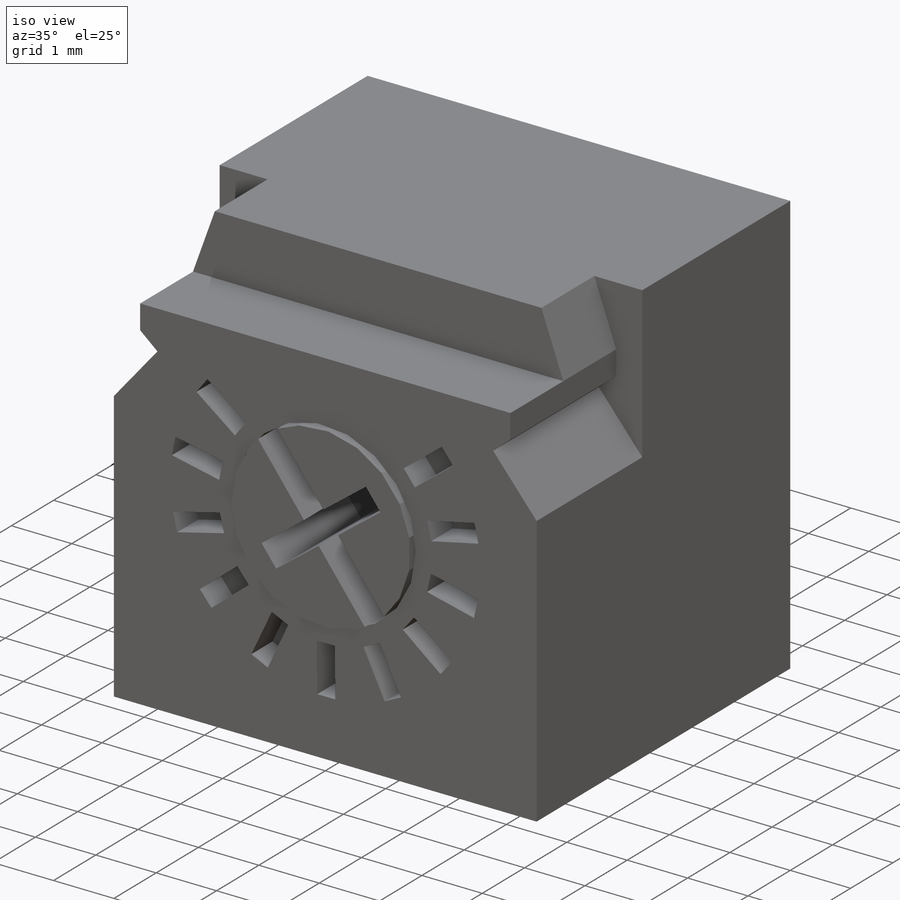
[diagram: iso view]
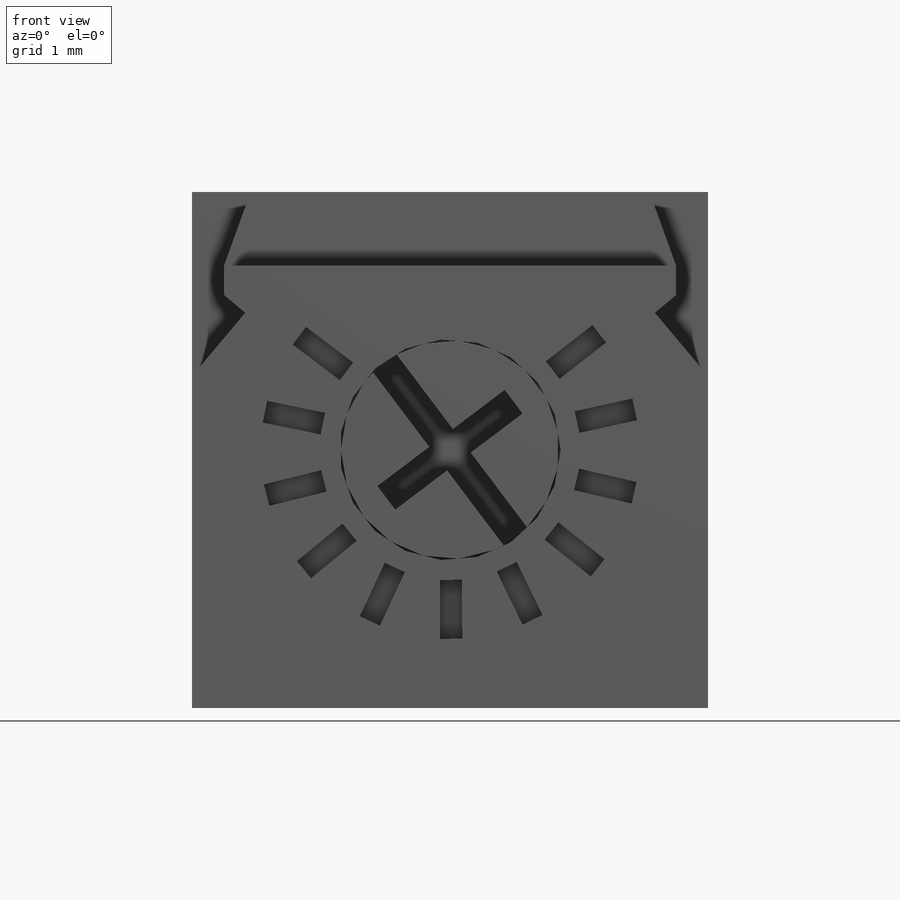
[diagram: front view]
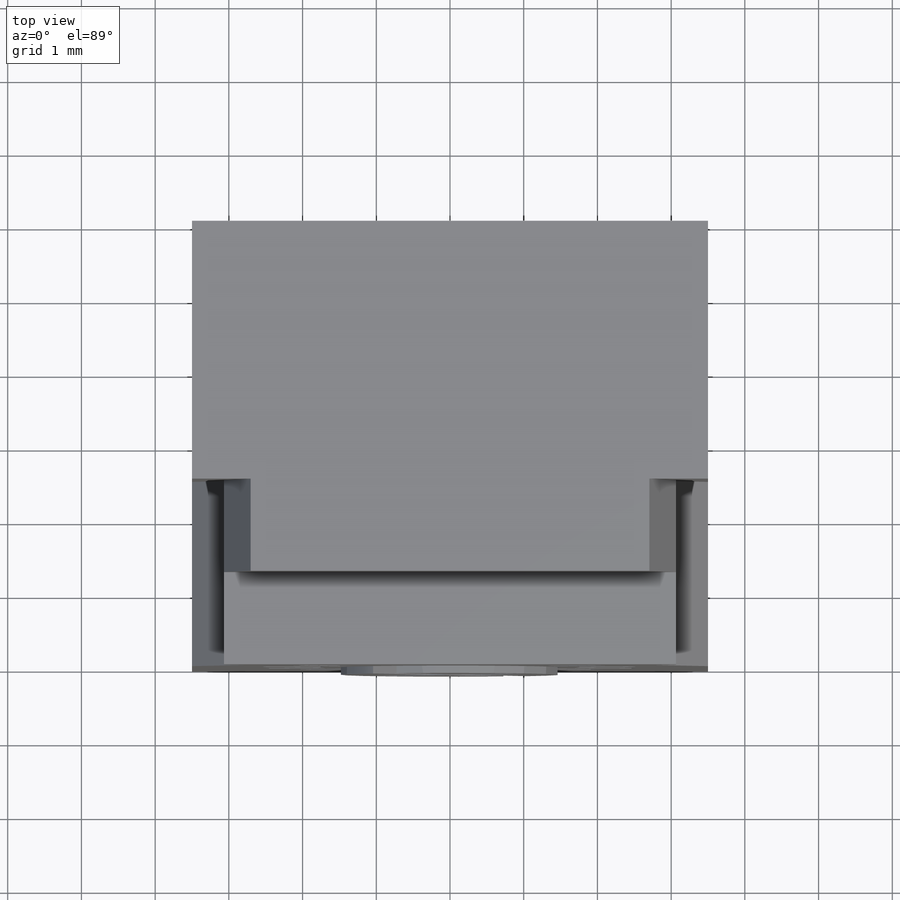
[diagram: top view]
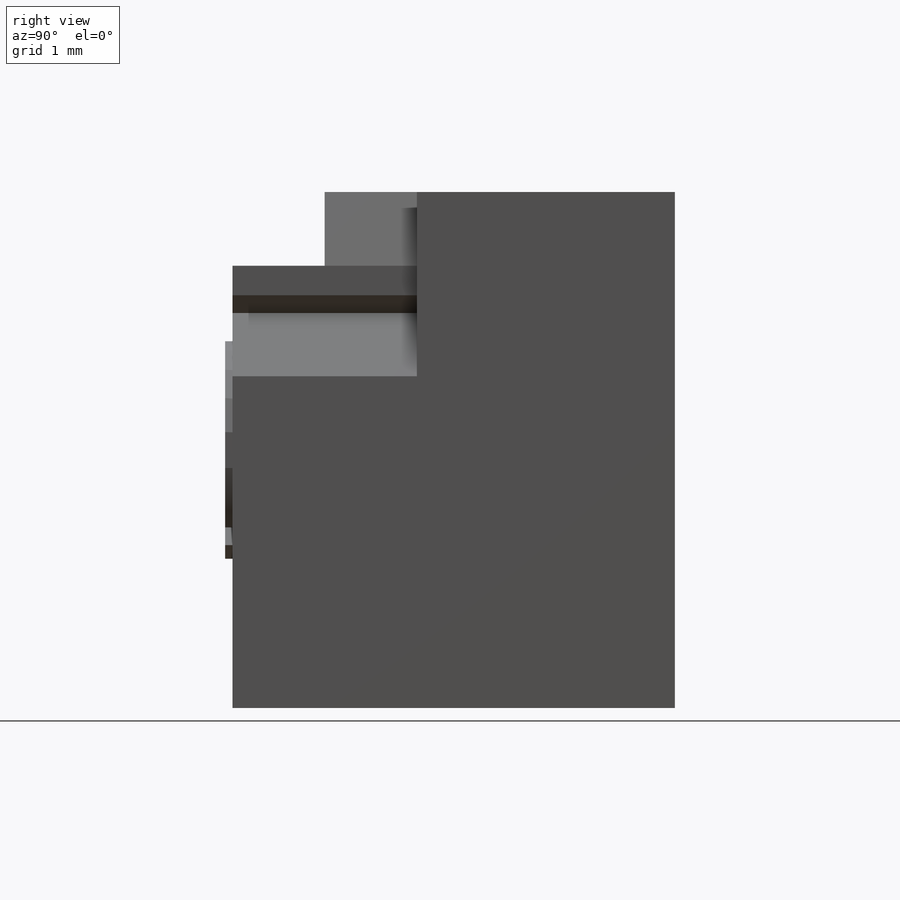
[diagram: right view]
SOLIDWORKS PART (.sldprt)
format: sldprt  version: not decoded by parser v0  size: 307,712 bytes
history: native  units: mm
features: extrude x10, sketch x7, cut_extrude x4, material x1 (+12 scaffold rows collapsed)
feature tree (34):
  scaffold x12  (default folders/planes/origin — collapsed)
  material  "Material <not specified>"
  sketch  "Sketch1"  dims[D5=3.0mm D1=7.0mm D2=7.0mm D3=3.5mm D4=3.5mm D6=0.4mm]
  extrude  "Base-Extrude"  [1 undecoded]
  extrude  "PW2_UID_val"  Depth=6mm
  sketch  "Sketch2"  dims[D1=3.0mm D2=0.4mm]
  cut_extrude  "Cut-Extrude1"  [1 undecoded]
  extrude  "PW2_UID_val"  Depth=3mm
  sketch  "Sketch3"  dims[D1=0.02mm]
  extrude  "Boss-Extrude1"  [1 undecoded]
  extrude  "PW2_UID_val"  Depth=3.1mm
  sketch  "Sketch4"  dims[D3=2.2mm D1=0.2mm D2=0.4mm]
  cut_extrude  "Cut-Extrude2"  [1 undecoded]
  extrude  "PW2_UID_val"  Depth=2mm
  sketch  "Sketch5"  dims[c1.D1=0.8mm c1.D2=1.0mm c2.D2=~37.916714deg c2.D3=1.2mm c2.D4=4.8mm c2.D1=0.15mm c2.D5=0.3mm]
  cut_extrude  "Cut-Extrude3"  [1 undecoded]
  extrude  "PW2_UID_val"  Depth=0.5mm
  sketch  "Sketch7"  dims[c1.D1=1.0mm c1.D2=2.5mm c1.D3=0.4mm c1.D4=~1.028609mm c2.D4=40.0deg c2.D5=~0.374842mm c3.D5=130.0deg]
  cut_extrude  "Cut-Extrude4"  [1 undecoded]
  extrude  "PW2_UID_val"  Depth=2.5mm
  sketch  "Sketch8"
  extrude  "Boss-Extrude2"  [1 undecoded]
  extrude  "PW2_UID_val"  Depth=1.25mm
decode coverage: 13 of 21 modeling features carry decoded parameters
note: ~ marks probable driven/reference dimensions
note: 7 parameter values undecoded
summary: no parameter record found for 7 features
note: suppression state not decoded; provenance and decode notes live in map.json
